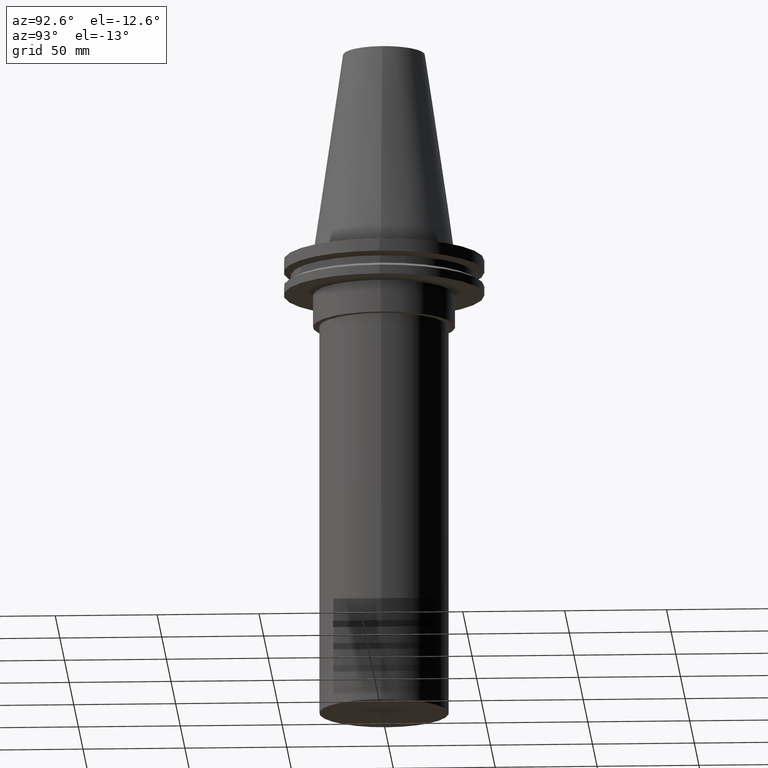
[diagram: clean part render]
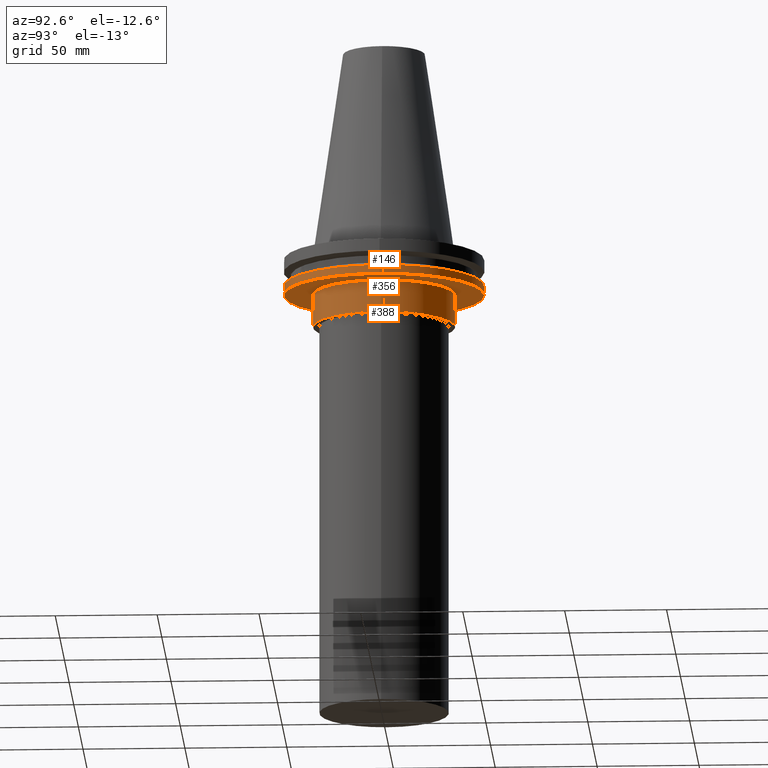
[diagram: same view with one multi-face feature highlighted, each face labeled with its STEP entity id]
A machine part, auxiliary view. The highlighted faces form ONE feature: a stepped (counterbored) hole: 2 coaxial cylindrical walls of radii 34.925 -> 49.215 mm joined by 1 annular planar shoulder face(s). The faces share edges in the B-rep.
Their STEP definitions:
[1] entity #146 (Cylinder):
#1 = DIRECTION ( 'NONE',  ( 1.000000000000000000, 0.000000000000000000, 0.000000000000000000 ) ) ;
#5 = CARTESIAN_POINT ( 'NONE',  ( 49.21499999999998920, 0.000000000000000000, -19.04999999999999716 ) ) ;
#26 = FACE_OUTER_BOUND ( 'NONE', #384, .T. ) ;
#35 = ORIENTED_EDGE ( 'NONE', *, *, #104, .F. ) ;
#66 = CIRCLE ( 'NONE', #308, 49.21499999999998920 ) ;
#69 = EDGE_LOOP ( 'NONE', ( #122 ) ) ;
#73 = CIRCLE ( 'NONE', #255, 49.21499999999998920 ) ;
#77 = VERTEX_POINT ( 'NONE', #5 ) ;
#104 = EDGE_CURVE ( 'NONE', #375, #375, #73, .T. ) ;
#122 = ORIENTED_EDGE ( 'NONE', *, *, #132, .T. ) ;
#132 = EDGE_CURVE ( 'NONE', #77, #77, #66, .T. ) ;
#146 = ADVANCED_FACE ( 'NONE', ( #26, #277 ), #367, .T. ) ;
#180 = DIRECTION ( 'NONE',  ( -0.000000000000000000, -0.000000000000000000, 1.000000000000000000 ) ) ;
#255 = AXIS2_PLACEMENT_3D ( 'NONE', #370, #309, #273 ) ;
#273 = DIRECTION ( 'NONE',  ( 1.000000000000000000, 0.000000000000000000, 0.000000000000000000 ) ) ;
#277 = FACE_OUTER_BOUND ( 'NONE', #69, .T. ) ;
#280 = DIRECTION ( 'NONE',  ( -0.000000000000000000, -0.000000000000000000, 1.000000000000000000 ) ) ;
#285 = CARTESIAN_POINT ( 'NONE',  ( 49.21499999999998920, 0.000000000000000000, -14.65761014474876944 ) ) ;
#306 = CARTESIAN_POINT ( 'NONE',  ( 0.000000000000000000, 0.000000000000000000, -19.04999999999999716 ) ) ;
#308 = AXIS2_PLACEMENT_3D ( 'NONE', #306, #180, #1 ) ;
#309 = DIRECTION ( 'NONE',  ( -0.000000000000000000, -0.000000000000000000, 1.000000000000000000 ) ) ;
#338 = AXIS2_PLACEMENT_3D ( 'NONE', #395, #280, #339 ) ;
#339 = DIRECTION ( 'NONE',  ( 1.000000000000000000, 0.000000000000000000, 0.000000000000000000 ) ) ;
#367 = CYLINDRICAL_SURFACE ( 'NONE', #338, 49.21499999999998920 ) ;
#370 = CARTESIAN_POINT ( 'NONE',  ( 0.000000000000000000, 0.000000000000000000, -14.65761014474876944 ) ) ;
#375 = VERTEX_POINT ( 'NONE', #285 ) ;
#384 = EDGE_LOOP ( 'NONE', ( #35 ) ) ;
#395 = CARTESIAN_POINT ( 'NONE',  ( 0.000000000000000000, 0.000000000000000000, 101.5999999999999943 ) ) ;
[2] entity #388 (Cylinder):
#7 = FACE_OUTER_BOUND ( 'NONE', #8, .T. ) ;
#8 = EDGE_LOOP ( 'NONE', ( #165 ) ) ;
#9 = DIRECTION ( 'NONE',  ( 1.000000000000000000, 0.000000000000000000, 0.000000000000000000 ) ) ;
#11 = EDGE_CURVE ( 'NONE', #105, #105, #19, .T. ) ;
#17 = DIRECTION ( 'NONE',  ( -0.000000000000000000, -0.000000000000000000, 1.000000000000000000 ) ) ;
#19 = CIRCLE ( 'NONE', #369, 34.92499999999999716 ) ;
#23 = ORIENTED_EDGE ( 'NONE', *, *, #32, .F. ) ;
#32 = EDGE_CURVE ( 'NONE', #223, #223, #97, .T. ) ;
#34 = CYLINDRICAL_SURFACE ( 'NONE', #334, 34.92499999999999716 ) ;
#48 = CARTESIAN_POINT ( 'NONE',  ( 0.000000000000000000, 0.000000000000000000, -19.04999999999999716 ) ) ;
#71 = CARTESIAN_POINT ( 'NONE',  ( 34.92499999999999716, 0.000000000000000000, -19.04999999999999716 ) ) ;
#97 = CIRCLE ( 'NONE', #241, 34.92499999999999716 ) ;
#105 = VERTEX_POINT ( 'NONE', #283 ) ;
#165 = ORIENTED_EDGE ( 'NONE', *, *, #11, .T. ) ;
#170 = DIRECTION ( 'NONE',  ( 1.000000000000000000, 0.000000000000000000, 0.000000000000000000 ) ) ;
#223 = VERTEX_POINT ( 'NONE', #71 ) ;
#235 = DIRECTION ( 'NONE',  ( 1.000000000000000000, 0.000000000000000000, 0.000000000000000000 ) ) ;
#241 = AXIS2_PLACEMENT_3D ( 'NONE', #48, #17, #170 ) ;
#259 = FACE_OUTER_BOUND ( 'NONE', #330, .T. ) ;
#283 = CARTESIAN_POINT ( 'NONE',  ( 34.92499999999999716, 0.000000000000000000, -35.00000000000000000 ) ) ;
#288 = DIRECTION ( 'NONE',  ( -0.000000000000000000, -0.000000000000000000, 1.000000000000000000 ) ) ;
#293 = CARTESIAN_POINT ( 'NONE',  ( 0.000000000000000000, 0.000000000000000000, -35.00000000000000000 ) ) ;
#330 = EDGE_LOOP ( 'NONE', ( #23 ) ) ;
#334 = AXIS2_PLACEMENT_3D ( 'NONE', #344, #288, #9 ) ;
#344 = CARTESIAN_POINT ( 'NONE',  ( 0.000000000000000000, 0.000000000000000000, 101.5999999999999943 ) ) ;
#350 = DIRECTION ( 'NONE',  ( -0.000000000000000000, -0.000000000000000000, 1.000000000000000000 ) ) ;
#369 = AXIS2_PLACEMENT_3D ( 'NONE', #293, #350, #235 ) ;
#388 = ADVANCED_FACE ( 'NONE', ( #259, #7 ), #34, .T. ) ;
[3] entity #356 (Plane):
#1 = DIRECTION ( 'NONE',  ( 1.000000000000000000, 0.000000000000000000, 0.000000000000000000 ) ) ;
#5 = CARTESIAN_POINT ( 'NONE',  ( 49.21499999999998920, 0.000000000000000000, -19.04999999999999716 ) ) ;
#17 = DIRECTION ( 'NONE',  ( -0.000000000000000000, -0.000000000000000000, 1.000000000000000000 ) ) ;
#32 = EDGE_CURVE ( 'NONE', #223, #223, #97, .T. ) ;
#39 = DIRECTION ( 'NONE',  ( 0.000000000000000000, -0.000000000000000000, 1.000000000000000000 ) ) ;
#48 = CARTESIAN_POINT ( 'NONE',  ( 0.000000000000000000, 0.000000000000000000, -19.04999999999999716 ) ) ;
#66 = CIRCLE ( 'NONE', #308, 49.21499999999998920 ) ;
#70 = FACE_BOUND ( 'NONE', #76, .T. ) ;
#71 = CARTESIAN_POINT ( 'NONE',  ( 34.92499999999999716, 0.000000000000000000, -19.04999999999999716 ) ) ;
#76 = EDGE_LOOP ( 'NONE', ( #331 ) ) ;
#77 = VERTEX_POINT ( 'NONE', #5 ) ;
#97 = CIRCLE ( 'NONE', #241, 34.92499999999999716 ) ;
#110 = EDGE_LOOP ( 'NONE', ( #168 ) ) ;
#132 = EDGE_CURVE ( 'NONE', #77, #77, #66, .T. ) ;
#135 = PLANE ( 'NONE',  #343 ) ;
#164 = FACE_OUTER_BOUND ( 'NONE', #110, .T. ) ;
#168 = ORIENTED_EDGE ( 'NONE', *, *, #132, .F. ) ;
#170 = DIRECTION ( 'NONE',  ( 1.000000000000000000, 0.000000000000000000, 0.000000000000000000 ) ) ;
#180 = DIRECTION ( 'NONE',  ( -0.000000000000000000, -0.000000000000000000, 1.000000000000000000 ) ) ;
#223 = VERTEX_POINT ( 'NONE', #71 ) ;
#241 = AXIS2_PLACEMENT_3D ( 'NONE', #48, #17, #170 ) ;
#249 = CARTESIAN_POINT ( 'NONE',  ( 0.000000000000000000, 49.21499999999998920, -19.04999999999999716 ) ) ;
#251 = DIRECTION ( 'NONE',  ( 1.000000000000000000, 0.000000000000000000, 0.000000000000000000 ) ) ;
#306 = CARTESIAN_POINT ( 'NONE',  ( 0.000000000000000000, 0.000000000000000000, -19.04999999999999716 ) ) ;
#308 = AXIS2_PLACEMENT_3D ( 'NONE', #306, #180, #1 ) ;
#331 = ORIENTED_EDGE ( 'NONE', *, *, #32, .T. ) ;
#343 = AXIS2_PLACEMENT_3D ( 'NONE', #249, #39, #251 ) ;
#356 = ADVANCED_FACE ( 'NONE', ( #164, #70 ), #135, .F. ) ;